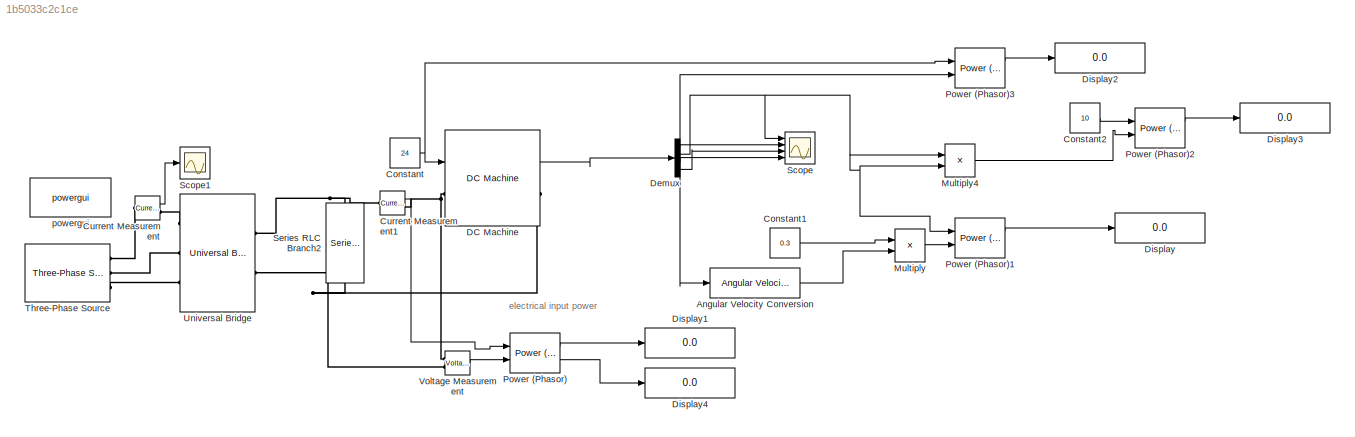
MODEL slx_1b5033c2c1ce
KIND model
CONFIG AbsTol = auto
CONFIG EnableMultiTasking = off
CONFIG FixedStep = auto
CONFIG MaxStep = auto
CONFIG MinStep = auto
CONFIG RelTol = 1e-3
CONFIG SampleTimeConstraint = Unconstrained
CONFIG Solver = FixedStepDiscrete
CONFIG SolverName = FixedStepDiscrete
CONFIG StartTime = 2
CONFIG StopTime = 5
BLOCK [Reference] Angular Velocity Conversion  REF=aerolibconvert2/Angular Velocity
Conversion
  Ports = [1, 1]
  SourceBlock = aerolibconvert2/Angular Velocity\nConversion
  SourceProductBaseCode = AE
  SourceProductName = Aerospace Blockset
  SourceType = Angular Velocity Conversion
BLOCK [Constant] Constant
  Value = 24
BLOCK [Constant] Constant1
  Value = 0.3
BLOCK [Constant] Constant2
  Value = 10
BLOCK [Reference] Current Measurement  REF=powerlib/Measurements/Current Measurement
  Ports = [0, 1, 0, 0, 0, 1, 1]
  SourceBlock = powerlib/Measurements/Current Measurement
  SourceProductBaseCode = PS
  SourceProductName = Simscape Power Systems
  SourceType = Current Measurement
  UserDataPersistent = on
BLOCK [Reference] Current Measurement1  REF=powerlib/Measurements/Current Measurement
  Ports = [0, 1, 0, 0, 0, 1, 1]
  SourceBlock = powerlib/Measurements/Current Measurement
  SourceProductBaseCode = PS
  SourceProductName = Simscape Power Systems
  SourceType = Current Measurement
  UserDataPersistent = on
BLOCK [Reference] DC Machine  REF=powerlib/Machines/DC Machine
  Ports = [1, 1, 0, 0, 0, 1, 1]
  SourceBlock = powerlib/Machines/DC Machine
  SourceProductBaseCode = PS
  SourceProductName = Simscape Power Systems
  SourceType = DC machine
BLOCK [Demux] Demux
  DisplayOption = bar
  Ports = [1, 4]
BLOCK [Display] Display
  Decimation = 1
  Ports = [1]
BLOCK [Display] Display1
  Decimation = 1
  Ports = [1]
BLOCK [Display] Display2
  Decimation = 1
  Ports = [1]
BLOCK [Display] Display3
  Decimation = 1
  Ports = [1]
BLOCK [Display] Display4
  Decimation = 1
  Ports = [1]
BLOCK [Product] Multiply
  InputSameDT = off
  OutDataTypeStr = Inherit: Inherit via internal rule
  Ports = [2, 1]
  RndMeth = Floor
  SaturateOnIntegerOverflow = off
BLOCK [Product] Multiply4
  InputSameDT = off
  OutDataTypeStr = Inherit: Inherit via internal rule
  Ports = [2, 1]
  RndMeth = Floor
  SaturateOnIntegerOverflow = off
BLOCK [Reference] Power (Phasor)  REF=powerlib_meascontrol/Measurements/Power
(Phasor)
  Ports = [2, 2]
  SourceBlock = powerlib_meascontrol/Measurements/Power\n(Phasor)
  SourceProductBaseCode = PS
  SourceProductName = Simscape Power Systems
  SourceType = Power (Phasor)
BLOCK [Reference] Power (Phasor)1  REF=powerlib_meascontrol/Measurements/Power
(Phasor)
  Ports = [2, 2]
  SourceBlock = powerlib_meascontrol/Measurements/Power\n(Phasor)
  SourceProductBaseCode = PS
  SourceProductName = Simscape Power Systems
  SourceType = Power (Phasor)
BLOCK [Reference] Power (Phasor)2  REF=powerlib_meascontrol/Measurements/Power
(Phasor)
  Ports = [2, 2]
  SourceBlock = powerlib_meascontrol/Measurements/Power\n(Phasor)
  SourceProductBaseCode = PS
  SourceProductName = Simscape Power Systems
  SourceType = Power (Phasor)
BLOCK [Reference] Power (Phasor)3  REF=powerlib_meascontrol/Measurements/Power
(Phasor)
  Ports = [2, 2]
  SourceBlock = powerlib_meascontrol/Measurements/Power\n(Phasor)
  SourceProductBaseCode = PS
  SourceProductName = Simscape Power Systems
  SourceType = Power (Phasor)
BLOCK [Scope] Scope
  Floating = off
  NumInputPorts = 4
  Ports = [4]
  ScopeSpecificationString = Simulink.scopes.TimeScopeBlockCfg('CurrentConfiguration', extmgr.ConfigurationSet(extmgr.Configuration('Core','General UI',true,'FigureColor',[1 1 1]),extmgr.Configuration('Core','Source UI',true),extmgr.Configuration('Sources','WiredSimulink',true),extmgr.Configuration('Visuals','Time Domain',true,'SerializedDisplays',{struct('MinYLimReal','8.01161','MaxYLimReal','8.9363','YLabelReal','','MinYLim...<+3825ch>
BLOCK [Scope] Scope1
  Floating = off
  NumInputPorts = 1
  Ports = [1]
  ScopeSpecificationString = Simulink.scopes.TimeScopeBlockCfg('CurrentConfiguration', extmgr.ConfigurationSet(extmgr.Configuration('Core','General UI',true),extmgr.Configuration('Core','Source UI',true),extmgr.Configuration('Sources','WiredSimulink',true,'DataLoggingVariableName','linecurrent','DataLogging',true),extmgr.Configuration('Visuals','Time Domain',true,'SerializedDisplays',{struct('MinYLimReal','-64.03113','MaxYLim...<+1456ch>
BLOCK [Reference] Series RLC Branch2  REF=powerlib/Elements/Series RLC Branch
  Ports = [0, 0, 0, 0, 0, 1, 1]
  SourceBlock = powerlib/Elements/Series RLC Branch
  SourceProductBaseCode = PS
  SourceProductName = Simscape Power Systems
  SourceType = Series RLC Branch
BLOCK [Reference] Three-Phase Source  REF=powerlib/Electrical
Sources/Three-Phase Source
  Ports = [0, 0, 0, 0, 0, 0, 3]
  SourceBlock = powerlib/Electrical\nSources/Three-Phase Source
  SourceProductBaseCode = PS
  SourceProductName = Simscape Power Systems
  SourceType = Three-Phase Source
BLOCK [Reference] Universal Bridge  REF=powerlib/Power
Electronics/Universal Bridge
  Ports = [0, 0, 0, 0, 0, 3, 2]
  SourceBlock = powerlib/Power\nElectronics/Universal Bridge
  SourceProductBaseCode = PS
  SourceProductName = Simscape Power Systems
  SourceType = Universal Bridge
BLOCK [Reference] Voltage Measurement  REF=powerlib/Measurements/Voltage Measurement
  Ports = [0, 1, 0, 0, 0, 2]
  SourceBlock = powerlib/Measurements/Voltage Measurement
  SourceProductBaseCode = PS
  SourceProductName = Simscape Power Systems
  SourceType = Voltage Measurement
  UserDataPersistent = on
BLOCK [Reference] powergui  REF=powerlib/powergui
  Ports = []
  Priority = 1
  SourceBlock = powerlib/powergui
  SourceProductBaseCode = PS
  SourceProductName = Simscape Power Systems
  SourceType = PSB option menu block
ANNOTATION (root): electrical input power
LINE Angular Velocity Conversion:1 -> Multiply:2
LINE Constant1:1 -> Multiply:1
LINE Constant2:1 -> Power (Phasor)2:1
NET Constant:1 -> DC Machine:1, Power (Phasor)3:1
LINE Current Measurement1:1 -> Power (Phasor):1
LINE Current Measurement:1 -> Scope1:1
LINE DC Machine:1 -> Demux:1
NET Demux:1 -> Angular Velocity Conversion:1, Power (Phasor)3:2, Scope:2
NET Demux:2 -> Multiply4:1, Multiply4:2, Power (Phasor)1:1, Scope:1
LINE Demux:3 -> Scope:4
LINE Demux:4 -> Scope:3
LINE Multiply4:1 -> Power (Phasor)2:2
LINE Multiply:1 -> Power (Phasor)1:2
LINE Power (Phasor)1:1 -> Display:1
LINE Power (Phasor)2:1 -> Display3:1
LINE Power (Phasor)3:1 -> Display2:1
LINE Power (Phasor):1 -> Display1:1
LINE Power (Phasor):2 -> Display4:1
LINE Voltage Measurement:1 -> Power (Phasor):2
PNET net1: Current Measurement1:LConn1 -- Series RLC Branch2:LConn1 -- Universal Bridge:RConn1
PNET net2: Current Measurement1:RConn1 -- DC Machine:LConn1 -- Voltage Measurement:LConn1
PLINE Current Measurement:LConn1 -- Three-Phase Source:RConn1
PLINE Current Measurement:RConn1 -- Universal Bridge:LConn1
PNET net3: DC Machine:RConn1 -- Series RLC Branch2:RConn1 -- Universal Bridge:RConn2 -- Voltage Measurement:LConn2
PLINE Three-Phase Source:RConn2 -- Universal Bridge:LConn2
PLINE Three-Phase Source:RConn3 -- Universal Bridge:LConn3
note: NET lines group one-source signal fan-out (src -> all destinations, sorted); 1:1 wires keep LINE; PNET lines group multi-terminal physical nets as a canonical sorted terminal list (undirected conserving connections); 2-terminal nets keep the pairwise PLINE form
